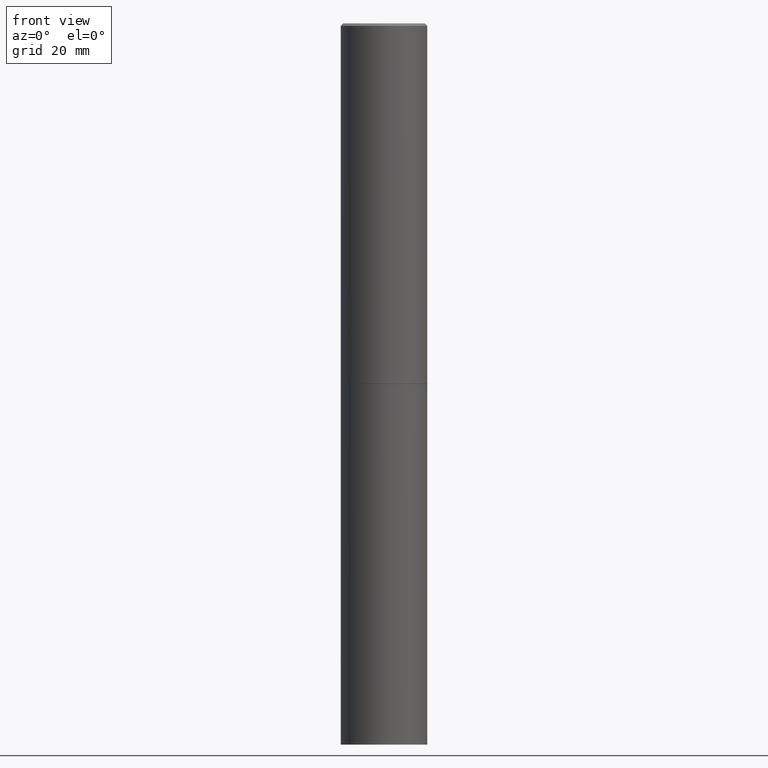
[diagram: clean part render]
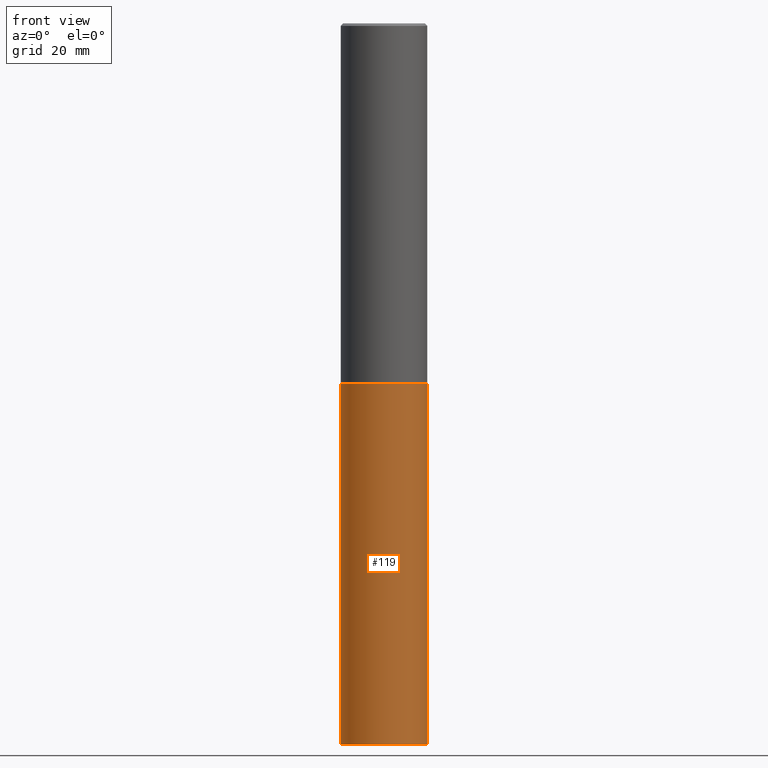
[diagram: same view with one face highlighted and labeled with its STEP entity id]
A machine part, front view. The second image highlights one B-rep face of the part: STEP entity #119.
In plain terms, the highlighted cylindrical surface (partial cylindrical patch) has radius 9.0005 mm, axis along (-0, 0, 1).
Its self-contained STEP definition (entity closure, byte-faithful):
#1 = DIRECTION ( 'NONE',  ( -2.445468806185136597E-29, 3.491481338843145583E-15, 1.000000000000000000 ) ) ;
#10 = CARTESIAN_POINT ( 'NONE',  ( 0.3543499999999999983, -2.474412824838128694E-15, 1.727873240503289749E-29 ) ) ;
#15 = ORIENTED_EDGE ( 'NONE', *, *, #319, .T. ) ;
#20 = CARTESIAN_POINT ( 'NONE',  ( -0.3543499999999999983, -1.294631181370425968E-14, -5.905499999999999972 ) ) ;
#26 = FACE_OUTER_BOUND ( 'NONE', #130, .T. ) ;
#44 = ORIENTED_EDGE ( 'NONE', *, *, #172, .F. ) ;
#48 = VERTEX_POINT ( 'NONE', #271 ) ;
#69 = VERTEX_POINT ( 'NONE', #20 ) ;
#76 = VECTOR ( 'NONE', #196, 39.37007874015748143 ) ;
#77 = AXIS2_PLACEMENT_3D ( 'NONE', #358, #116, #343 ) ;
#79 = VERTEX_POINT ( 'NONE', #354 ) ;
#86 = CARTESIAN_POINT ( 'NONE',  ( -0.3543499999999999983, 2.517808184165914997E-15, -1.743024649231826066E-29 ) ) ;
#116 = DIRECTION ( 'NONE',  ( -2.445468806185136597E-29, 3.491481338843145583E-15, 1.000000000000000000 ) ) ;
#118 = CARTESIAN_POINT ( 'NONE',  ( 7.220735744022852519E-29, -1.030929694920215502E-14, -2.952700000000000102 ) ) ;
#119 = ADVANCED_FACE ( 'NONE', ( #26 ), #197, .T. ) ;
#125 = ORIENTED_EDGE ( 'NONE', *, *, #142, .T. ) ;
#126 = EDGE_CURVE ( 'NONE', #48, #79, #226, .T. ) ;
#128 = DIRECTION ( 'NONE',  ( -2.445468806185136877E-29, 3.491481338843145188E-15, 1.000000000000000000 ) ) ;
#130 = EDGE_LOOP ( 'NONE', ( #44, #125, #15, #188 ) ) ;
#142 = EDGE_CURVE ( 'NONE', #69, #191, #218, .T. ) ;
#156 = LINE ( 'NONE', #10, #336 ) ;
#172 = EDGE_CURVE ( 'NONE', #69, #48, #236, .T. ) ;
#188 = ORIENTED_EDGE ( 'NONE', *, *, #126, .F. ) ;
#191 = VERTEX_POINT ( 'NONE', #221 ) ;
#195 = AXIS2_PLACEMENT_3D ( 'NONE', #118, #255, #228 ) ;
#196 = DIRECTION ( 'NONE',  ( -2.445468806185136877E-29, 3.491481338843145188E-15, 1.000000000000000000 ) ) ;
#197 = CYLINDRICAL_SURFACE ( 'NONE', #313, 0.3543499999999999983 ) ;
#218 = CIRCLE ( 'NONE', #77, 0.3543499999999999983 ) ;
#221 = CARTESIAN_POINT ( 'NONE',  ( 0.3543499999999999983, -2.309335587137632500E-14, -5.905499999999999972 ) ) ;
#226 = CIRCLE ( 'NONE', #195, 0.3543499999999999983 ) ;
#228 = DIRECTION ( 'NONE',  ( 1.000000000000000000, -6.982962677686265922E-15, 0.000000000000000000 ) ) ;
#233 = DIRECTION ( 'NONE',  ( 1.000000000000000000, -6.982962677686266711E-15, 4.876176775795935793E-29 ) ) ;
#236 = LINE ( 'NONE', #86, #76 ) ;
#255 = DIRECTION ( 'NONE',  ( -2.445468806185136597E-29, 3.491481338843145583E-15, 1.000000000000000000 ) ) ;
#263 = CARTESIAN_POINT ( 'NONE',  ( 0.000000000000000000, 0.000000000000000000, 0.000000000000000000 ) ) ;
#271 = CARTESIAN_POINT ( 'NONE',  ( -0.3543499999999999983, -1.294631181370425968E-14, -2.952700000000000102 ) ) ;
#313 = AXIS2_PLACEMENT_3D ( 'NONE', #263, #1, #233 ) ;
#319 = EDGE_CURVE ( 'NONE', #191, #79, #156, .T. ) ;
#336 = VECTOR ( 'NONE', #128, 39.37007874015748143 ) ;
#343 = DIRECTION ( 'NONE',  ( 1.000000000000000000, -6.982962677686271444E-15, 0.000000000000000000 ) ) ;
#354 = CARTESIAN_POINT ( 'NONE',  ( 0.3543499999999999983, -1.278370977404028332E-14, -2.952700000000000102 ) ) ;
#358 = CARTESIAN_POINT ( 'NONE',  ( 1.444171603492632270E-28, -2.061894304653819197E-14, -5.905499999999999972 ) ) ;